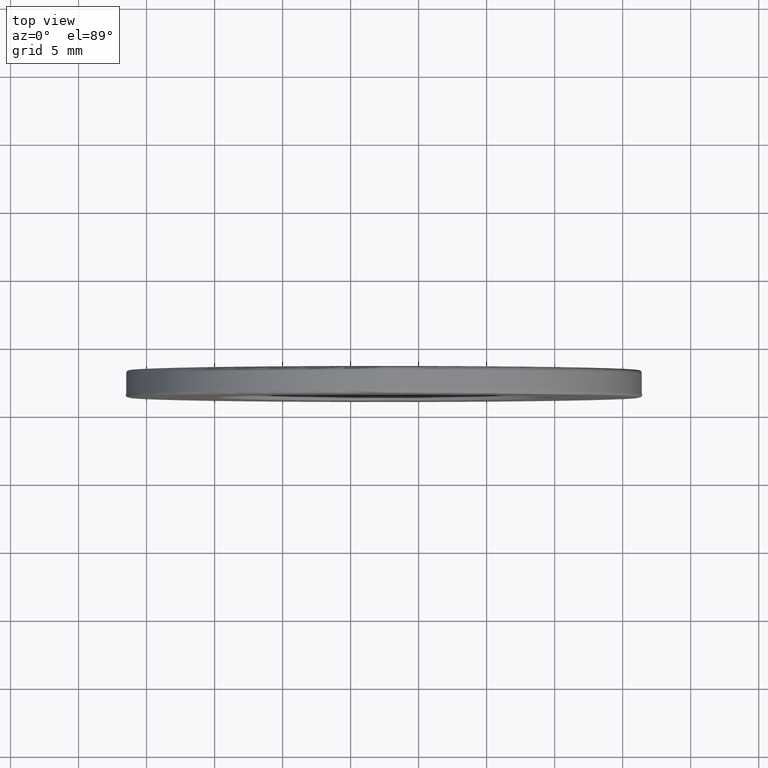
[diagram: clean part render]
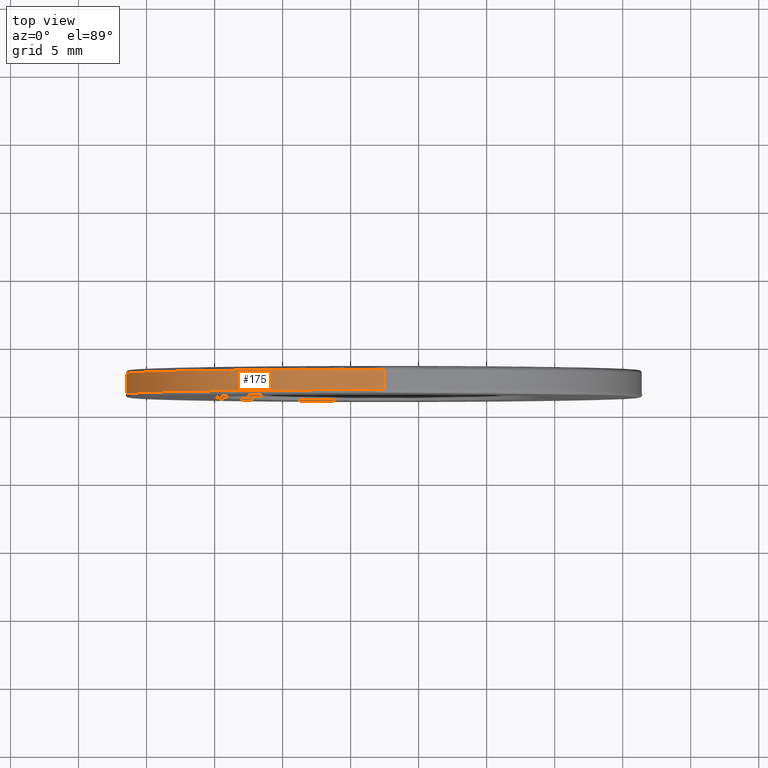
[diagram: same view with one face highlighted and labeled with its STEP entity id]
A machine part, top view. The second image highlights one B-rep face of the part: STEP entity #175.
In plain terms, the highlighted cylindrical surface (partial cylindrical patch) has radius 19 mm, axis along (-0, -1, -0).
Its self-contained STEP definition (entity closure, byte-faithful):
#35 = CARTESIAN_POINT ( 'NONE',  ( -7.546808913101048510, -2.143595127302728276, 56.99999999999999289 ) ) ;
#54 = ORIENTED_EDGE ( 'NONE', *, *, #282, .T. ) ;
#57 = ORIENTED_EDGE ( 'NONE', *, *, #167, .F. ) ;
#62 = AXIS2_PLACEMENT_3D ( 'NONE', #206, #587, #148 ) ;
#112 = CARTESIAN_POINT ( 'NONE',  ( -7.546808913101045846, -3.643595127302727832, 56.99999999999999289 ) ) ;
#148 = DIRECTION ( 'NONE',  ( 0.000000000000000000, 0.000000000000000000, 1.000000000000000000 ) ) ;
#167 = EDGE_CURVE ( 'NONE', #251, #357, #341, .T. ) ;
#175 = ADVANCED_FACE ( 'NONE', ( #293 ), #577, .T. ) ;
#194 = VERTEX_POINT ( 'NONE', #250 ) ;
#203 = EDGE_CURVE ( 'NONE', #238, #357, #578, .T. ) ;
#206 = CARTESIAN_POINT ( 'NONE',  ( -7.546808913101048510, -3.643595127302727832, 38.00000000000000000 ) ) ;
#212 = DIRECTION ( 'NONE',  ( 0.000000000000000000, 0.000000000000000000, 1.000000000000000000 ) ) ;
#214 = LINE ( 'NONE', #403, #521 ) ;
#234 = EDGE_CURVE ( 'NONE', #251, #194, #270, .T. ) ;
#238 = VERTEX_POINT ( 'NONE', #497 ) ;
#240 = DIRECTION ( 'NONE',  ( -0.000000000000000000, -1.000000000000000000, -0.000000000000000000 ) ) ;
#241 = ORIENTED_EDGE ( 'NONE', *, *, #203, .T. ) ;
#248 = CARTESIAN_POINT ( 'NONE',  ( -7.546808913101045846, -1.893595127302727832, 56.99999999999999289 ) ) ;
#250 = CARTESIAN_POINT ( 'NONE',  ( -7.546808913101044958, -2.143595127302728276, 19.00000000000000000 ) ) ;
#251 = VERTEX_POINT ( 'NONE', #35 ) ;
#260 = EDGE_LOOP ( 'NONE', ( #57, #332, #54, #241 ) ) ;
#270 = CIRCLE ( 'NONE', #398, 18.99999999999999645 ) ;
#282 = EDGE_CURVE ( 'NONE', #194, #238, #214, .T. ) ;
#293 = FACE_OUTER_BOUND ( 'NONE', #260, .T. ) ;
#317 = AXIS2_PLACEMENT_3D ( 'NONE', #393, #439, #429 ) ;
#332 = ORIENTED_EDGE ( 'NONE', *, *, #234, .T. ) ;
#341 = LINE ( 'NONE', #248, #388 ) ;
#357 = VERTEX_POINT ( 'NONE', #112 ) ;
#361 = CARTESIAN_POINT ( 'NONE',  ( -7.546808913101048510, -2.143595127302728276, 38.00000000000000000 ) ) ;
#388 = VECTOR ( 'NONE', #240, 1000.000000000000000 ) ;
#393 = CARTESIAN_POINT ( 'NONE',  ( -7.546808913101048510, -1.893595127302727832, 38.00000000000000000 ) ) ;
#398 = AXIS2_PLACEMENT_3D ( 'NONE', #361, #593, #212 ) ;
#403 = CARTESIAN_POINT ( 'NONE',  ( -7.546808913101048510, -1.893595127302727832, 19.00000000000000000 ) ) ;
#429 = DIRECTION ( 'NONE',  ( 0.000000000000000000, 0.000000000000000000, -1.000000000000000000 ) ) ;
#439 = DIRECTION ( 'NONE',  ( -0.000000000000000000, -1.000000000000000000, -0.000000000000000000 ) ) ;
#497 = CARTESIAN_POINT ( 'NONE',  ( -7.546808913101048510, -3.643595127302727832, 19.00000000000000000 ) ) ;
#499 = DIRECTION ( 'NONE',  ( -0.000000000000000000, -1.000000000000000000, -0.000000000000000000 ) ) ;
#521 = VECTOR ( 'NONE', #499, 1000.000000000000000 ) ;
#577 = CYLINDRICAL_SURFACE ( 'NONE', #317, 19.00000000000000000 ) ;
#578 = CIRCLE ( 'NONE', #62, 18.99999999999999645 ) ;
#587 = DIRECTION ( 'NONE',  ( 0.000000000000000000, 1.000000000000000000, 0.000000000000000000 ) ) ;
#593 = DIRECTION ( 'NONE',  ( -0.000000000000000000, -1.000000000000000000, -0.000000000000000000 ) ) ;